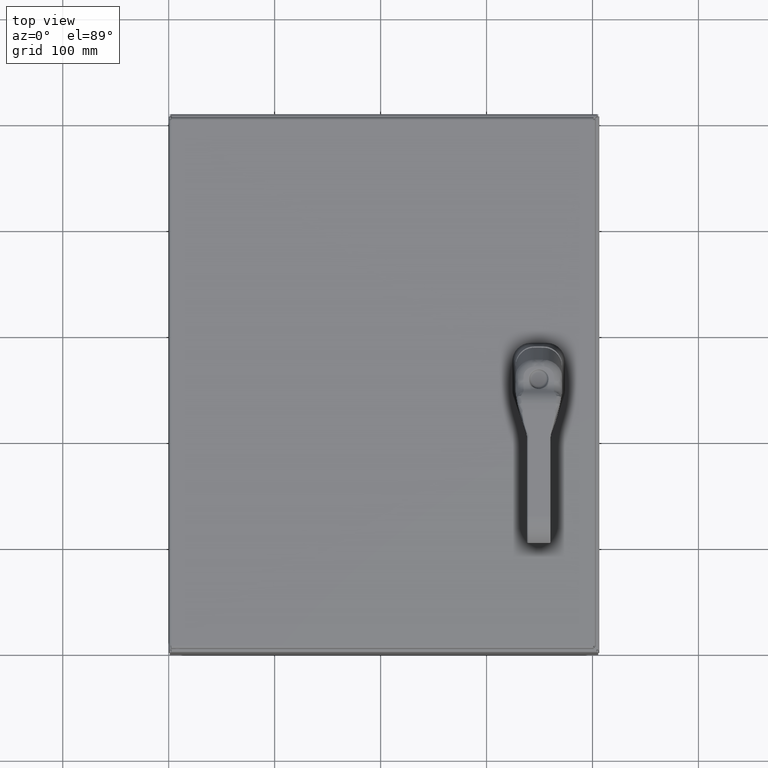
[diagram: clean part render]
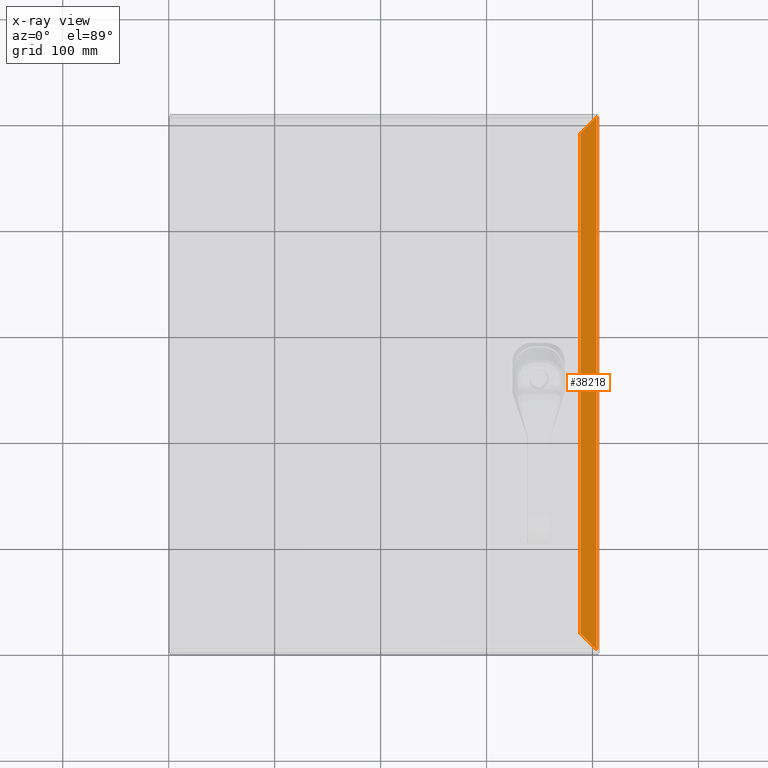
[diagram: x-ray — body ghosted, one internal face saturated and labeled with its STEP entity id]
A machine part, top view, then the same camera in x-ray: the body is ghosted and one INTERNAL B-rep face — a face not visible from any outside direction — is saturated and labeled: STEP entity #38218.
In plain terms, the highlighted planar face has unit normal (0, 0, 1).
Its self-contained STEP definition (entity closure, byte-faithful):
#411 = DIRECTION ( 'NONE',  ( 2.820714000000000104E-16, -1.000000000000000000, 1.432545999999999958E-16 ) ) ;
#1388 = EDGE_LOOP ( 'NONE', ( #45559, #41930, #66279, #53309 ) ) ;
#5452 = VERTEX_POINT ( 'NONE', #5579 ) ;
#5579 = CARTESIAN_POINT ( 'NONE',  ( 15.89475000000001792, 0.1162985434560336456, 5.926000000000019696 ) ) ;
#7425 = EDGE_CURVE ( 'NONE', #43356, #5452, #63323, .T. ) ;
#11187 = LINE ( 'NONE', #19733, #57533 ) ;
#11556 = DIRECTION ( 'NONE',  ( 0.0000000000000000000, -1.000000000000000000, -0.0000000000000000000 ) ) ;
#13035 = CARTESIAN_POINT ( 'NONE',  ( 15.29274999999995366, 19.28170145654400258, 5.926000000000014367 ) ) ;
#14514 = EDGE_CURVE ( 'NONE', #63267, #18652, #54723, .T. ) ;
#17479 = FACE_OUTER_BOUND ( 'NONE', #1388, .T. ) ;
#18652 = VERTEX_POINT ( 'NONE', #60515 ) ;
#19733 = CARTESIAN_POINT ( 'NONE',  ( 15.18750000000000888, 19.17645145654401162, 5.926000000000010814 ) ) ;
#21848 = DIRECTION ( 'NONE',  ( 1.000000000000000000, 0.0000000000000000000, -0.0000000000000000000 ) ) ;
#25124 = DIRECTION ( 'NONE',  ( 0.7071067811865469066, -0.7071067811865479058, 0.0000000000000000000 ) ) ;
#31692 = DIRECTION ( 'NONE',  ( -0.7071067811865469066, -0.7071067811865479058, 0.0000000000000000000 ) ) ;
#33365 = DIRECTION ( 'NONE',  ( 0.0000000000000000000, 0.0000000000000000000, 1.000000000000000000 ) ) ;
#38218 = ADVANCED_FACE ( 'NONE', ( #17479 ), #68479, .F. ) ;
#41386 = CARTESIAN_POINT ( 'NONE',  ( 15.89475000000001259, 19.88370145654400645, 5.926000000000014367 ) ) ;
#41596 = CARTESIAN_POINT ( 'NONE',  ( 15.89475000000001792, 0.1162985434560340203, 5.926000000000023249 ) ) ;
#41930 = ORIENTED_EDGE ( 'NONE', *, *, #7425, .T. ) ;
#43356 = VERTEX_POINT ( 'NONE', #61376 ) ;
#44048 = LINE ( 'NONE', #41596, #70786 ) ;
#45559 = ORIENTED_EDGE ( 'NONE', *, *, #69815, .F. ) ;
#53309 = ORIENTED_EDGE ( 'NONE', *, *, #14514, .F. ) ;
#54723 = LINE ( 'NONE', #62359, #68097 ) ;
#57533 = VECTOR ( 'NONE', #31692, 39.37007874015748854 ) ;
#57942 = AXIS2_PLACEMENT_3D ( 'NONE', #61973, #33365, #21848 ) ;
#60515 = CARTESIAN_POINT ( 'NONE',  ( 15.29275000000001938, 0.7182985434560424931, 5.926000000000019696 ) ) ;
#61376 = CARTESIAN_POINT ( 'NONE',  ( 15.89475000000001259, 19.88370145654401000, 5.926000000000010814 ) ) ;
#61973 = CARTESIAN_POINT ( 'NONE',  ( 15.58426692111543410, 9.999999999999998224, 5.926000000000016144 ) ) ;
#62359 = CARTESIAN_POINT ( 'NONE',  ( 15.29275000000000873, 9.999999999999998224, 5.926000000000016144 ) ) ;
#62461 = VECTOR ( 'NONE', #411, 39.37007874015748143 ) ;
#63267 = VERTEX_POINT ( 'NONE', #13035 ) ;
#63323 = LINE ( 'NONE', #41386, #62461 ) ;
#66279 = ORIENTED_EDGE ( 'NONE', *, *, #70333, .F. ) ;
#68097 = VECTOR ( 'NONE', #11556, 39.37007874015748143 ) ;
#68479 = PLANE ( 'NONE',  #57942 ) ;
#69815 = EDGE_CURVE ( 'NONE', #43356, #63267, #11187, .T. ) ;
#70333 = EDGE_CURVE ( 'NONE', #18652, #5452, #44048, .T. ) ;
#70786 = VECTOR ( 'NONE', #25124, 39.37007874015748854 ) ;